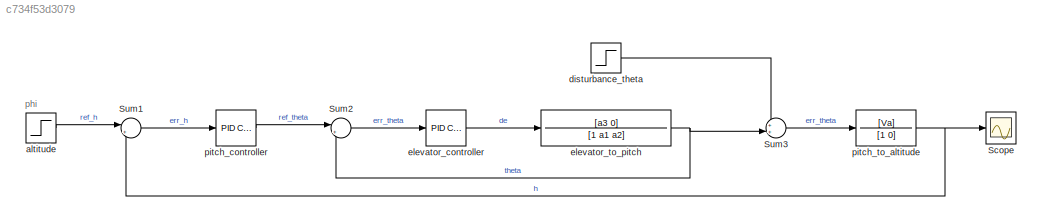
MODEL slx_c734f53d3079
KIND model
CONFIG AbsTol = auto
CONFIG EnableMultiTasking = off
CONFIG FixedStep = auto
CONFIG MaxStep = auto
CONFIG MinStep = auto
CONFIG RelTol = 1e-3
CONFIG SampleTimeConstraint = Unconstrained
CONFIG SolverName = VariableStepAuto
CONFIG StartTime = 0.0
CONFIG StopTime = 10.0
BLOCK [Scope] Scope
  Floating = off
  NumInputPorts = 1
  ScopeSpecificationString = Simulink.scopes.TimeScopeBlockCfg('CurrentConfiguration', extmgr.ConfigurationSet(extmgr.Configuration('Core','General UI',true),extmgr.Configuration('Core','Source UI',true),extmgr.Configuration('Sources','WiredSimulink',true),extmgr.Configuration('Visuals','Time Domain',true,'SerializedDisplays',{struct('MinYLimReal','-0.23218','MaxYLimReal','2.08965','YLabelReal','','MinYLimMag','0.00000','MaxY...<+1350ch>
BLOCK [Sum] Sum1
  Inputs = |+-
BLOCK [Sum] Sum2
  Inputs = |+-
BLOCK [Sum] Sum3
  Inputs = ++|
BLOCK [Step] altitude
  SampleTime = 0
BLOCK [Step] disturbance_theta
  After = 5
  SampleTime = 0
  Time = 5
BLOCK [Reference] elevator_controller  REF=slpidlib/PID Controller
  LibrarySourceBlock = simulink/Continuous/PID Controller
  SourceBlock = slpidlib/PID Controller
  SourceType = PID 1dof
BLOCK [TransferFcn] elevator_to_pitch
  Denominator = [1 a1 a2]
  Numerator = [a3 0]
BLOCK [Reference] pitch_controller  REF=slpidlib/PID Controller
  LibrarySourceBlock = simulink/Continuous/PID Controller
  SourceBlock = slpidlib/PID Controller
  SourceType = PID 1dof
BLOCK [TransferFcn] pitch_to_altitude
  Denominator = [1 0]
  Numerator = [Va]
ANNOTATION (root): phi
LINE Sum1:1 -> pitch_controller:1
LINE Sum2:1 -> elevator_controller:1
LINE Sum3:1 -> pitch_to_altitude:1
LINE altitude:1 -> Sum1:1
LINE disturbance_theta:1 -> Sum3:1
LINE elevator_controller:1 -> elevator_to_pitch:1
NET elevator_to_pitch:1 -> Sum2:2, Sum3:2
LINE pitch_controller:1 -> Sum2:1
NET pitch_to_altitude:1 -> Scope:1, Sum1:2
note: NET lines group one-source signal fan-out (src -> all destinations, sorted); 1:1 wires keep LINE
